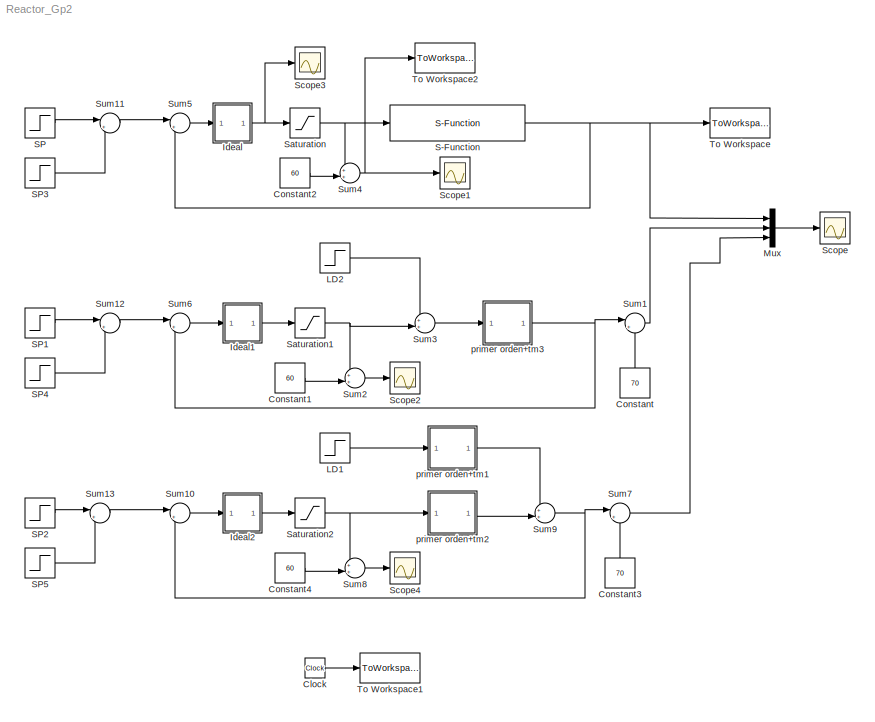
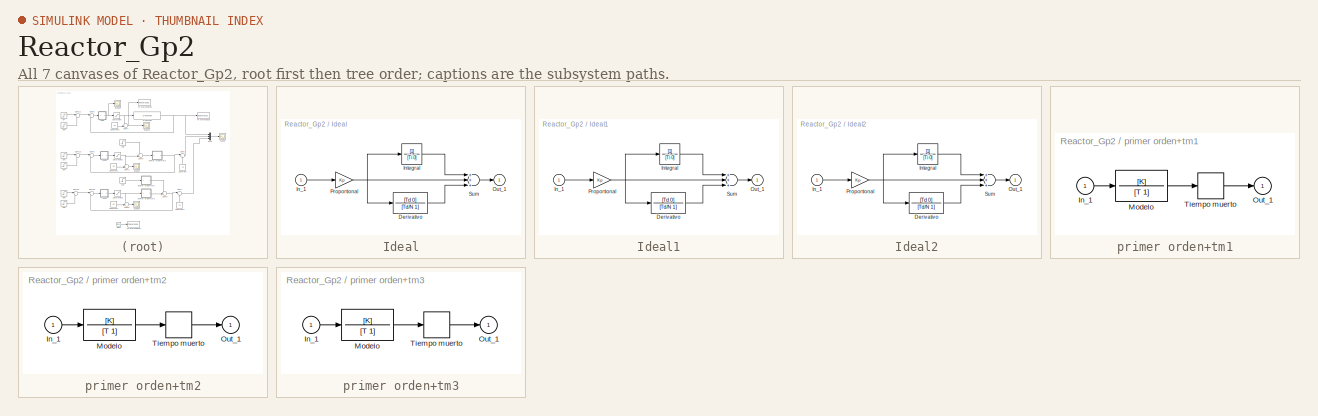
[diagram: thumbnail index - all 7 canvases of the model, root first then tree order]
MODEL Reactor_Gp2
KIND model
BLOCK [Clock] Clock
  Decimation = 10
  SID = 1
BLOCK [Constant] Constant
  OutDataType = sfix(16)
  OutScaling = 2^0
  SID = 2
  Value = 70
BLOCK [Constant] Constant1
  OutDataType = sfix(16)
  OutScaling = 2^0
  SID = 3
  Value = 60
BLOCK [Constant] Constant2
  OutDataType = sfix(16)
  OutScaling = 2^0
  SID = 4
  Value = 60
BLOCK [Constant] Constant3
  OutDataType = sfix(16)
  OutScaling = 2^0
  SID = 5
  Value = 70
BLOCK [Constant] Constant4
  OutDataType = sfix(16)
  OutScaling = 2^0
  SID = 6
  Value = 60
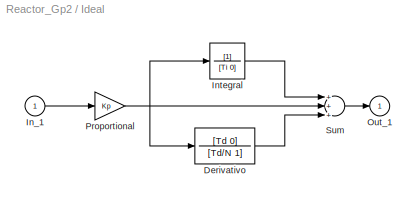
BLOCK [SubSystem] Ideal
  AncestorBlock = simulink_extras/Additional\nLinear/PID Controller
  FunctionWithSeparateData = off
  MaskCallbackString = |||
  MaskDescription = Introduzca los valores para la Ganancia Proporcional Kp, el Tiempo Integral Ti y el Tiempo Derivativo Td\nKp[1+1/Tis+Tds/(1+Td/Ns)]
  MaskDisplay = disp('PID')
  MaskEnableString = on,on,on,on
  MaskHelp = This block implements a PID controller where parameters are entered for the Proportional, Integral and Derivative terms. Unmask this block to see how it works. The derivative term is implemented using a true derivative block.  <repeated x3 — deduplicated; at blocks: Ideal, Ideal1, Ideal2>
  MaskHideContents = off
  MaskIconFrame = on
  MaskIconOpaque = on
  MaskIconRotate = none
  MaskIconUnits = autoscale
  MaskPortRotate = default
  MaskPromptString = Ganancia Proporcional|Tiempo Integral|Tiempo Derivativo|Filtro
  MaskStyleString = edit,edit,edit,edit
  MaskToolTipString = on,on,on,on
  MaskTunableValueString = on,on,on,on
  MaskType = Controlador PID Ideal
  MaskValueString = Kc|Ti|Td|10
  MaskVariables = Kp=@1;Ti=@2;Td=@3;N=@4;
  MaskVisibilityString = on,on,on,on
  MinAlgLoopOccurrences = off
  Opaque = off
  Ports = [1, 1]
  PropExecContextOutsideSubsystem = off
  RTWSystemCode = Auto
  RequestExecContextInheritance = off
  SID = 7
BLOCK [TransferFcn] Ideal/Derivativo
  Denominator = [Td/N 1]
  Numerator = [Td 0]
  SID = 2
BLOCK [Inport] Ideal/In_1
  IconDisplay = Port number
  OutDataType = sfix(16)
  OutScaling = 2^0
  SID = 1
BLOCK [TransferFcn] Ideal/Integral
  Denominator = [Ti 0]
  SID = 3
BLOCK [Outport] Ideal/Out_1
  IconDisplay = Port number
  InitialOutput = 0
  OutDataType = sfix(16)
  OutScaling = 2^0
  SID = 6
BLOCK [Gain] Ideal/Proportional
  Gain = Kp
  OutDataType = sfix(16)
  OutScaling = 2^0
  ParameterDataType = sfix(16)
  ParameterScaling = 2^0
  SID = 4
BLOCK [Sum] Ideal/Sum
  Inputs = +++
  OutDataType = sfix(16)
  OutScaling = 2^0
  Ports = [3, 1]
  SID = 5
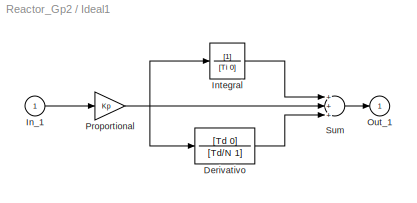
BLOCK [SubSystem] Ideal1
  AncestorBlock = simulink_extras/Additional\nLinear/PID Controller
  FunctionWithSeparateData = off
  MaskCallbackString = |||
  MaskDescription = Introduzca los valores para la Ganancia Proporcional Kp, el Tiempo Integral Ti y el Tiempo Derivativo Td\nKp[1+1/Tis+Tds/(1+Td/Ns)]
  MaskDisplay = disp('PID')
  MaskEnableString = on,on,on,on
  MaskHideContents = off
  MaskIconFrame = on
  MaskIconOpaque = on
  MaskIconRotate = none
  MaskIconUnits = autoscale
  MaskPortRotate = default
  MaskPromptString = Ganancia Proporcional|Tiempo Integral|Tiempo Derivativo|Filtro
  MaskStyleString = edit,edit,edit,edit
  MaskToolTipString = on,on,on,on
  MaskTunableValueString = on,on,on,on
  MaskType = Controlador PID Ideal
  MaskValueString = Kc|Ti|Td|10
  MaskVariables = Kp=@1;Ti=@2;Td=@3;N=@4;
  MaskVisibilityString = on,on,on,on
  MinAlgLoopOccurrences = off
  Opaque = off
  Ports = [1, 1]
  PropExecContextOutsideSubsystem = off
  RTWSystemCode = Auto
  RequestExecContextInheritance = off
  SID = 8
BLOCK [TransferFcn] Ideal1/Derivativo
  Denominator = [Td/N 1]
  Numerator = [Td 0]
  SID = 2
BLOCK [Inport] Ideal1/In_1
  IconDisplay = Port number
  OutDataType = sfix(16)
  OutScaling = 2^0
  SID = 1
BLOCK [TransferFcn] Ideal1/Integral
  Denominator = [Ti 0]
  SID = 3
BLOCK [Outport] Ideal1/Out_1
  IconDisplay = Port number
  InitialOutput = 0
  OutDataType = sfix(16)
  OutScaling = 2^0
  SID = 6
BLOCK [Gain] Ideal1/Proportional
  Gain = Kp
  OutDataType = sfix(16)
  OutScaling = 2^0
  ParameterDataType = sfix(16)
  ParameterScaling = 2^0
  SID = 4
BLOCK [Sum] Ideal1/Sum
  Inputs = +++
  OutDataType = sfix(16)
  OutScaling = 2^0
  Ports = [3, 1]
  SID = 5
BLOCK [SubSystem] Ideal2
  AncestorBlock = simulink_extras/Additional\nLinear/PID Controller
  FunctionWithSeparateData = off
  MaskCallbackString = |||
  MaskDescription = Introduzca los valores para la Ganancia Proporcional Kp, el Tiempo Integral Ti y el Tiempo Derivativo Td\nKp[1+1/Tis+Tds/(1+Td/Ns)]
  MaskDisplay = disp('PID')
  MaskEnableString = on,on,on,on
  MaskHideContents = off
  MaskIconFrame = on
  MaskIconOpaque = on
  MaskIconRotate = none
  MaskIconUnits = autoscale
  MaskPortRotate = default
  MaskPromptString = Ganancia Proporcional|Tiempo Integral|Tiempo Derivativo|Filtro
  MaskStyleString = edit,edit,edit,edit
  MaskToolTipString = on,on,on,on
  MaskTunableValueString = on,on,on,on
  MaskType = Controlador PID Ideal
  MaskValueString = Kc|Ti|Td|10
  MaskVariables = Kp=@1;Ti=@2;Td=@3;N=@4;
  MaskVisibilityString = on,on,on,on
  MinAlgLoopOccurrences = off
  Opaque = off
  Ports = [1, 1]
  PropExecContextOutsideSubsystem = off
  RTWSystemCode = Auto
  RequestExecContextInheritance = off
  SID = 9
BLOCK [TransferFcn] Ideal2/Derivativo
  Denominator = [Td/N 1]
  Numerator = [Td 0]
  SID = 2
BLOCK [Inport] Ideal2/In_1
  IconDisplay = Port number
  OutDataType = sfix(16)
  OutScaling = 2^0
  SID = 1
BLOCK [TransferFcn] Ideal2/Integral
  Denominator = [Ti 0]
  SID = 3
BLOCK [Outport] Ideal2/Out_1
  IconDisplay = Port number
  InitialOutput = 0
  OutDataType = sfix(16)
  OutScaling = 2^0
  SID = 6
BLOCK [Gain] Ideal2/Proportional
  Gain = Kp
  OutDataType = sfix(16)
  OutScaling = 2^0
  ParameterDataType = sfix(16)
  ParameterScaling = 2^0
  SID = 4
BLOCK [Sum] Ideal2/Sum
  Inputs = +++
  OutDataType = sfix(16)
  OutScaling = 2^0
  Ports = [3, 1]
  SID = 5
BLOCK [Step] LD1
  SID = 10
  SampleTime = 0
  Time = 10
BLOCK [Step] LD2
  SID = 11
  SampleTime = 0
  Time = 10
BLOCK [Mux] Mux
  DisplayOption = bar
  Inputs = 3
  Ports = [3, 1]
  SID = 12
BLOCK [S-Function] S-Function
  EnableBusSupport = off
  FunctionName = VandeVusse_reactor
  Parameters = 2.9175, 1.10
  Ports = [1, 1]
  SID = 13
BLOCK [Step] SP
  After = 60
  Before = 70
  SID = 14
  SampleTime = 0
BLOCK [Step] SP1
  After = -10
  SID = 15
  SampleTime = 0
BLOCK [Step] SP2
  After = -10
  SID = 16
  SampleTime = 0
BLOCK [Step] SP3
  After = 5
  SID = 17
  SampleTime = 0
  Time = 20
BLOCK [Step] SP4
  After = 5
  SID = 18
  SampleTime = 0
  Time = 20
BLOCK [Step] SP5
  After = 5
  SID = 19
  SampleTime = 0
  Time = 20
BLOCK [Saturate] Saturation
  LowerLimit = -60
  Ports = [1, 1]
  SID = 20
  UpperLimit = 40
BLOCK [Saturate] Saturation1
  LowerLimit = -60
  Ports = [1, 1]
  SID = 21
  UpperLimit = 40
BLOCK [Saturate] Saturation2
  LowerLimit = -60
  Ports = [1, 1]
  SID = 22
  UpperLimit = 40
BLOCK [Scope] Scope
  DataFormat = StructureWithTime
  Floating = off
  LimitDataPoints = off
  NumInputPorts = 1
  Ports = [1]
  SID = 23
  SampleTime = 0
  YMax = 74
  YMin = 54
BLOCK [Scope] Scope1
  DataFormat = StructureWithTime
  Floating = off
  LimitDataPoints = off
  NumInputPorts = 1
  Ports = [1]
  SID = 24
  SampleTime = 0
  SaveName = ScopeData1
  YMax = 97
  YMin = 77
BLOCK [Scope] Scope2
  DataFormat = StructureWithTime
  Floating = off
  LimitDataPoints = off
  NumInputPorts = 1
  Ports = [1]
  SID = 25
  SampleTime = 0
  SaveName = ScopeData2
  YMax = 90
  YMin = 65
BLOCK [Scope] Scope3
  DataFormat = StructureWithTime
  Floating = off
  LimitDataPoints = off
  NumInputPorts = 1
  Ports = [1]
  SID = 26
  SampleTime = 0
  SaveName = ScopeData3
  YMax = 87.6518
  YMin = 87.6517
BLOCK [Scope] Scope4
  DataFormat = StructureWithTime
  Floating = off
  LimitDataPoints = off
  NumInputPorts = 1
  Ports = [1]
  SID = 27
  SampleTime = 0
  SaveName = ScopeData4
  YMax = 90
  YMin = 65
BLOCK [Sum] Sum1
  IconShape = round
  InputSameDT = off
  Inputs = |++
  OutDataType = sfix(16)
  OutDataTypeMode = Inherit via internal rule
  OutDataTypeStr = Inherit: Inherit via internal rule
  OutScaling = 2^0
  Ports = [2, 1]
  SID = 28
BLOCK [Sum] Sum10
  IconShape = round
  InputSameDT = off
  Inputs = |+-
  OutDataType = sfix(16)
  OutDataTypeMode = Inherit via internal rule
  OutDataTypeStr = Inherit: Inherit via internal rule
  OutScaling = 2^0
  Ports = [2, 1]
  SID = 29
BLOCK [Sum] Sum11
  IconShape = round
  InputSameDT = off
  Inputs = |++
  OutDataType = sfix(16)
  OutDataTypeMode = Inherit via internal rule
  OutDataTypeStr = Inherit: Inherit via internal rule
  OutScaling = 2^0
  Ports = [2, 1]
  SID = 30
BLOCK [Sum] Sum12
  IconShape = round
  InputSameDT = off
  Inputs = |++
  OutDataType = sfix(16)
  OutDataTypeMode = Inherit via internal rule
  OutDataTypeStr = Inherit: Inherit via internal rule
  OutScaling = 2^0
  Ports = [2, 1]
  SID = 31
BLOCK [Sum] Sum13
  IconShape = round
  InputSameDT = off
  Inputs = |++
  OutDataType = sfix(16)
  OutDataTypeMode = Inherit via internal rule
  OutDataTypeStr = Inherit: Inherit via internal rule
  OutScaling = 2^0
  Ports = [2, 1]
  SID = 32
BLOCK [Sum] Sum2
  IconShape = round
  InputSameDT = off
  Inputs = ++|
  OutDataType = sfix(16)
  OutDataTypeMode = Inherit via internal rule
  OutDataTypeStr = Inherit: Inherit via internal rule
  OutScaling = 2^0
  Ports = [2, 1]
  SID = 33
BLOCK [Sum] Sum3
  IconShape = round
  InputSameDT = off
  Inputs = ++|
  OutDataType = sfix(16)
  OutDataTypeMode = Inherit via internal rule
  OutDataTypeStr = Inherit: Inherit via internal rule
  OutScaling = 2^0
  Ports = [2, 1]
  SID = 34
BLOCK [Sum] Sum4
  IconShape = round
  InputSameDT = off
  Inputs = ++|
  OutDataType = sfix(16)
  OutDataTypeMode = Inherit via internal rule
  OutDataTypeStr = Inherit: Inherit via internal rule
  OutScaling = 2^0
  Ports = [2, 1]
  SID = 35
BLOCK [Sum] Sum5
  IconShape = round
  InputSameDT = off
  Inputs = |+-
  OutDataType = sfix(16)
  OutDataTypeMode = Inherit via internal rule
  OutDataTypeStr = Inherit: Inherit via internal rule
  OutScaling = 2^0
  Ports = [2, 1]
  SID = 36
BLOCK [Sum] Sum6
  IconShape = round
  InputSameDT = off
  Inputs = |+-
  OutDataType = sfix(16)
  OutDataTypeMode = Inherit via internal rule
  OutDataTypeStr = Inherit: Inherit via internal rule
  OutScaling = 2^0
  Ports = [2, 1]
  SID = 37
BLOCK [Sum] Sum7
  IconShape = round
  InputSameDT = off
  Inputs = |++
  OutDataType = sfix(16)
  OutDataTypeMode = Inherit via internal rule
  OutDataTypeStr = Inherit: Inherit via internal rule
  OutScaling = 2^0
  Ports = [2, 1]
  SID = 38
BLOCK [Sum] Sum8
  IconShape = round
  InputSameDT = off
  Inputs = ++|
  OutDataType = sfix(16)
  OutDataTypeMode = Inherit via internal rule
  OutDataTypeStr = Inherit: Inherit via internal rule
  OutScaling = 2^0
  Ports = [2, 1]
  SID = 39
BLOCK [Sum] Sum9
  IconShape = round
  InputSameDT = off
  Inputs = ++|
  OutDataType = sfix(16)
  OutDataTypeMode = Inherit via internal rule
  OutDataTypeStr = Inherit: Inherit via internal rule
  OutScaling = 2^0
  Ports = [2, 1]
  SID = 40
BLOCK [ToWorkspace] To Workspace
  MaxDataPoints = inf
  Ports = [1]
  SID = 41
  SampleTime = -1
  SaveFormat = Array
  VariableName = y
BLOCK [ToWorkspace] To Workspace1
  MaxDataPoints = inf
  Ports = [1]
  SID = 42
  SampleTime = -1
  SaveFormat = Array
  VariableName = t
BLOCK [ToWorkspace] To Workspace2
  MaxDataPoints = inf
  Ports = [1]
  SID = 43
  SampleTime = -1
  SaveFormat = Array
  VariableName = u
BLOCK [SubSystem] primer orden+tm1
  FunctionWithSeparateData = off
  MaskCallbackString = ||
  MaskDescription = Introduzca el valor para los parametros de la constante de tiempo y del retardo para el sistema de primer orden con retardo\nGm(s)=exp(-Ls)/(1+Ts)
  MaskDisplay = disp('Modelo')
  MaskEnableString = on,on,on
  MaskHideContents = off
  MaskIconFrame = on
  MaskIconOpaque = on
  MaskIconRotate = none
  MaskIconUnits = autoscale
  MaskPortRotate = default
  MaskPromptString = Ganancia|Constante de tiempo|Retardo
  MaskStyleString = edit,edit,edit
  MaskToolTipString = on,on,on
  MaskTunableValueString = on,on,on
  MaskType = Modelo de primer orden mas tiempo muerto
  MaskValueString = 5.4624|0.6829|0.2209
  MaskVariables = K=@1;T=@2;L=@3;
  MaskVisibilityString = on,on,on
  MinAlgLoopOccurrences = off
  Opaque = off
  Ports = [1, 1]
  PropExecContextOutsideSubsystem = off
  RTWSystemCode = Auto
  RequestExecContextInheritance = off
  SID = 44
BLOCK [Inport] primer orden+tm1/In_1
  IconDisplay = Port number
  OutDataType = sfix(16)
  OutScaling = 2^0
  SID = 45
BLOCK [TransferFcn] primer orden+tm1/Modelo
  Denominator = [T 1]
  Numerator = [K]
  SID = 46
BLOCK [Outport] primer orden+tm1/Out_1
  IconDisplay = Port number
  InitialOutput = 0
  OutDataType = sfix(16)
  OutScaling = 2^0
  SID = 48
BLOCK [TransportDelay] primer orden+tm1/Tiempo muerto
  DelayTime = L
  SID = 47
BLOCK [SubSystem] primer orden+tm2
  FunctionWithSeparateData = off
  MaskCallbackString = ||
  MaskDescription = Introduzca el valor para los parametros de la constante de tiempo y del retardo para el sistema de primer orden con retardo\nGm(s)=exp(-Ls)/(1+Ts)
  MaskDisplay = disp('Modelo')
  MaskEnableString = on,on,on
  MaskHideContents = off
  MaskIconFrame = on
  MaskIconOpaque = on
  MaskIconRotate = none
  MaskIconUnits = autoscale
  MaskPortRotate = default
  MaskPromptString = Ganancia|Constante de tiempo|Retardo
  MaskStyleString = edit,edit,edit
  MaskToolTipString = on,on,on
  MaskTunableValueString = on,on,on
  MaskType = Modelo de primer orden mas tiempo muerto
  MaskValueString = K|T|Ln
  MaskVariables = K=@1;T=@2;L=@3;
  MaskVisibilityString = on,on,on
  MinAlgLoopOccurrences = off
  Opaque = off
  Ports = [1, 1]
  PropExecContextOutsideSubsystem = off
  RTWSystemCode = Auto
  RequestExecContextInheritance = off
  SID = 49
BLOCK [Inport] primer orden+tm2/In_1
  IconDisplay = Port number
  OutDataType = sfix(16)
  OutScaling = 2^0
  SID = 50
BLOCK [TransferFcn] primer orden+tm2/Modelo
  Denominator = [T 1]
  Numerator = [K]
  SID = 51
BLOCK [Outport] primer orden+tm2/Out_1
  IconDisplay = Port number
  InitialOutput = 0
  OutDataType = sfix(16)
  OutScaling = 2^0
  SID = 53
BLOCK [TransportDelay] primer orden+tm2/Tiempo muerto
  DelayTime = L
  SID = 52
BLOCK [SubSystem] primer orden+tm3
  FunctionWithSeparateData = off
  MaskCallbackString = ||
  MaskDescription = Introduzca el valor para los parametros de la constante de tiempo y del retardo para el sistema de primer orden con retardo\nGm(s)=exp(-Ls)/(1+Ts)
  MaskDisplay = disp('Modelo')
  MaskEnableString = on,on,on
  MaskHideContents = off
  MaskIconFrame = on
  MaskIconOpaque = on
  MaskIconRotate = none
  MaskIconUnits = autoscale
  MaskPortRotate = default
  MaskPromptString = Ganancia|Constante de tiempo|Retardo
  MaskStyleString = edit,edit,edit
  MaskToolTipString = on,on,on
  MaskTunableValueString = on,on,on
  MaskType = Modelo de primer orden mas tiempo muerto
  MaskValueString = K|T|Ln
  MaskVariables = K=@1;T=@2;L=@3;
  MaskVisibilityString = on,on,on
  MinAlgLoopOccurrences = off
  Opaque = off
  Ports = [1, 1]
  PropExecContextOutsideSubsystem = off
  RTWSystemCode = Auto
  RequestExecContextInheritance = off
  SID = 54
BLOCK [Inport] primer orden+tm3/In_1
  IconDisplay = Port number
  OutDataType = sfix(16)
  OutScaling = 2^0
  SID = 55
BLOCK [TransferFcn] primer orden+tm3/Modelo
  Denominator = [T 1]
  Numerator = [K]
  SID = 56
BLOCK [Outport] primer orden+tm3/Out_1
  IconDisplay = Port number
  InitialOutput = 0
  OutDataType = sfix(16)
  OutScaling = 2^0
  SID = 58
BLOCK [TransportDelay] primer orden+tm3/Tiempo muerto
  DelayTime = L
  SID = 57
LINE Clock:1 -> To Workspace1:1
LINE Constant1:1 -> Sum2:2
LINE Constant2:1 -> Sum4:2
LINE Constant3:1 -> Sum7:2
LINE Constant4:1 -> Sum8:2
LINE Constant:1 -> Sum1:2
LINE Ideal/Derivativo:1 -> Ideal/Sum:3
LINE Ideal/In_1:1 -> Ideal/Proportional:1
LINE Ideal/Integral:1 -> Ideal/Sum:1
NET Ideal/Proportional:1 -> Ideal/Derivativo:1, Ideal/Integral:1, Ideal/Sum:2
LINE Ideal/Sum:1 -> Ideal/Out_1:1
LINE Ideal1/Derivativo:1 -> Ideal1/Sum:3
LINE Ideal1/In_1:1 -> Ideal1/Proportional:1
LINE Ideal1/Integral:1 -> Ideal1/Sum:1
NET Ideal1/Proportional:1 -> Ideal1/Derivativo:1, Ideal1/Integral:1, Ideal1/Sum:2
LINE Ideal1/Sum:1 -> Ideal1/Out_1:1
LINE Ideal1:1 -> Saturation1:1
LINE Ideal2/Derivativo:1 -> Ideal2/Sum:3
LINE Ideal2/In_1:1 -> Ideal2/Proportional:1
LINE Ideal2/Integral:1 -> Ideal2/Sum:1
NET Ideal2/Proportional:1 -> Ideal2/Derivativo:1, Ideal2/Integral:1, Ideal2/Sum:2
LINE Ideal2/Sum:1 -> Ideal2/Out_1:1
LINE Ideal2:1 -> Saturation2:1
NET Ideal:1 -> Saturation:1, Scope3:1
LINE LD1:1 -> primer orden+tm1:1
LINE LD2:1 -> Sum3:1
LINE Mux:1 -> Scope:1
NET S-Function:1 -> Mux:1, Sum5:2, To Workspace:1
LINE SP1:1 -> Sum12:1
LINE SP2:1 -> Sum13:1
LINE SP3:1 -> Sum11:2
LINE SP4:1 -> Sum12:2
LINE SP5:1 -> Sum13:2
LINE SP:1 -> Sum11:1
NET Saturation1:1 -> Sum2:1, Sum3:2
NET Saturation2:1 -> Sum8:1, primer orden+tm2:1
NET Saturation:1 -> S-Function:1, Sum4:1
LINE Sum10:1 -> Ideal2:1
LINE Sum11:1 -> Sum5:1
LINE Sum12:1 -> Sum6:1
LINE Sum13:1 -> Sum10:1
LINE Sum1:1 -> Mux:2
LINE Sum2:1 -> Scope2:1
LINE Sum3:1 -> primer orden+tm3:1
NET Sum4:1 -> Scope1:1, To Workspace2:1
LINE Sum5:1 -> Ideal:1
LINE Sum6:1 -> Ideal1:1
LINE Sum7:1 -> Mux:3
LINE Sum8:1 -> Scope4:1
NET Sum9:1 -> Sum10:2, Sum7:1
LINE primer orden+tm1/In_1:1 -> primer orden+tm1/Modelo:1
LINE primer orden+tm1/Modelo:1 -> primer orden+tm1/Tiempo muerto:1
LINE primer orden+tm1/Tiempo muerto:1 -> primer orden+tm1/Out_1:1
LINE primer orden+tm1:1 -> Sum9:1
LINE primer orden+tm2/In_1:1 -> primer orden+tm2/Modelo:1
LINE primer orden+tm2/Modelo:1 -> primer orden+tm2/Tiempo muerto:1
LINE primer orden+tm2/Tiempo muerto:1 -> primer orden+tm2/Out_1:1
LINE primer orden+tm2:1 -> Sum9:2
LINE primer orden+tm3/In_1:1 -> primer orden+tm3/Modelo:1
LINE primer orden+tm3/Modelo:1 -> primer orden+tm3/Tiempo muerto:1
LINE primer orden+tm3/Tiempo muerto:1 -> primer orden+tm3/Out_1:1
NET primer orden+tm3:1 -> Sum1:1, Sum6:2
note: NET lines group one-source signal fan-out (src -> all destinations, sorted); 1:1 wires keep LINE
